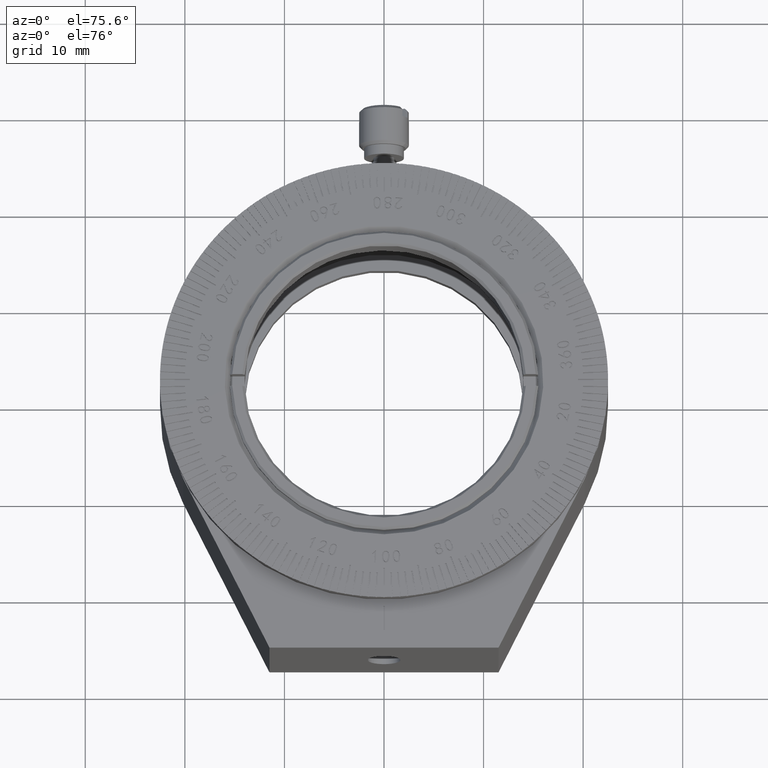
[diagram: clean part render]
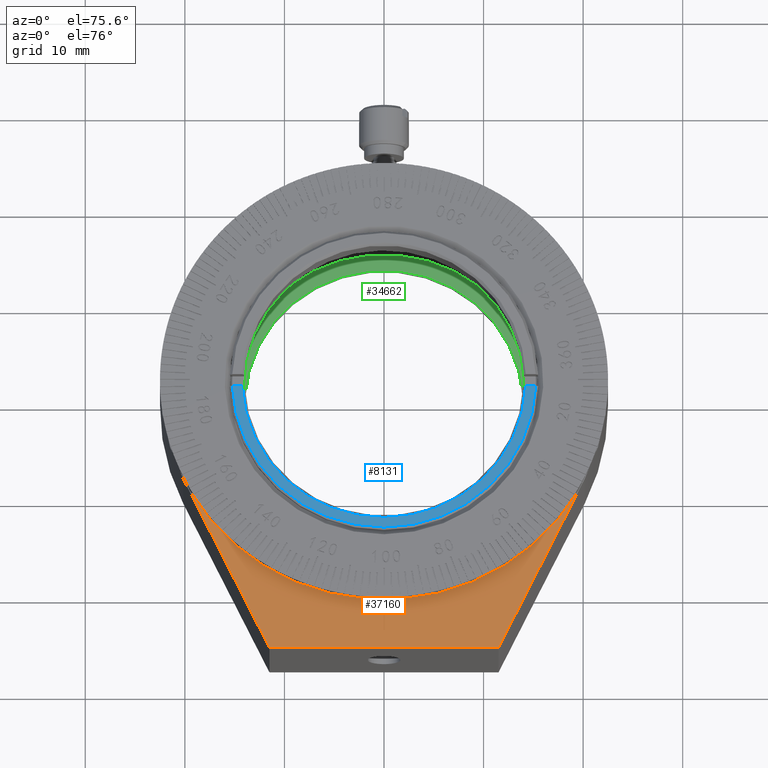
[diagram: same view with three faces highlighted in distinct colors, each labeled with its STEP entity id]
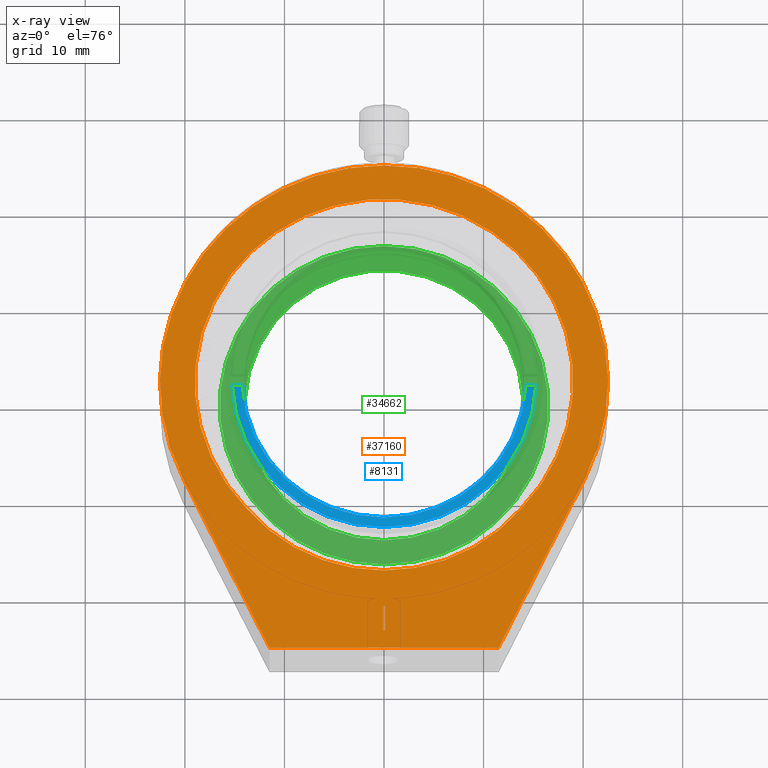
[diagram: x-ray of the same camera — body ghosted, the three highlighted faces saturated]
A machine part, auxiliary view with three faces highlighted in distinct colors.
The next image is the same camera in x-ray (body ghosted, the three faces saturated) — at least one of them is partly hidden behind the body in this view.
Their STEP definitions:

[orange] entity #37160 — the highlighted planar face has unit normal (0, 0, 1).
#762 = CARTESIAN_POINT ( 'NONE',  ( 0.000000000000000000, 10.00000000000000000, 25.69999999999999929 ) ) ;
#772 = EDGE_CURVE ( 'NONE', #30325, #32861, #28014, .T. ) ;
#779 = CARTESIAN_POINT ( 'NONE',  ( 0.000000000000000000, 10.00000000000000000, 27.50000000000000000 ) ) ;
#1203 = DIRECTION ( 'NONE',  ( 0.000000000000000000, 0.000000000000000000, 1.000000000000000000 ) ) ;
#1663 = DIRECTION ( 'NONE',  ( 1.000000000000000000, 0.000000000000000000, -0.000000000000000000 ) ) ;
#2346 = VERTEX_POINT ( 'NONE', #14215 ) ;
#3522 = DIRECTION ( 'NONE',  ( 0.000000000000000000, 1.000000000000000000, 0.000000000000000000 ) ) ;
#3915 = ORIENTED_EDGE ( 'NONE', *, *, #772, .T. ) ;
#6412 = LINE ( 'NONE', #779, #33964 ) ;
#6437 = DIRECTION ( 'NONE',  ( 0.000000000000000000, 0.000000000000000000, 1.000000000000000000 ) ) ;
#7767 = EDGE_CURVE ( 'NONE', #47676, #61572, #40872, .T. ) ;
#8728 = DIRECTION ( 'NONE',  ( 0.000000000000000000, -0.000000000000000000, 1.000000000000000000 ) ) ;
#8735 = CARTESIAN_POINT ( 'NONE',  ( 20.16791126059156980, 10.00000000000000000, 9.975237109207151676 ) ) ;
#8884 = EDGE_LOOP ( 'NONE', ( #31712, #43660 ) ) ;
#9024 = DIRECTION ( 'NONE',  ( -0.000000000000000000, 0.000000000000000000, -1.000000000000000000 ) ) ;
#9894 = DIRECTION ( 'NONE',  ( 0.4433438715203179559, 0.000000000000000000, -0.8963516115818478402 ) ) ;
#11913 = CARTESIAN_POINT ( 'NONE',  ( 11.50000000000000355, 10.00000000000000000, 27.50000000000000000 ) ) ;
#11928 = DIRECTION ( 'NONE',  ( 0.4433438715203182334, 0.000000000000000000, 0.8963516115818477292 ) ) ;
#13750 = LINE ( 'NONE', #19406, #25097 ) ;
#14064 = DIRECTION ( 'NONE',  ( 0.000000000000000000, -0.000000000000000000, 1.000000000000000000 ) ) ;
#14102 = FACE_BOUND ( 'NONE', #45536, .T. ) ;
#14215 = CARTESIAN_POINT ( 'NONE',  ( -20.16791126059156980, 10.00000000000000000, 9.975237109207158781 ) ) ;
#17436 = VECTOR ( 'NONE', #9894, 1000.000000000000227 ) ;
#17594 = EDGE_CURVE ( 'NONE', #61572, #47676, #25172, .T. ) ;
#17857 = ORIENTED_EDGE ( 'NONE', *, *, #46785, .T. ) ;
#18462 = CARTESIAN_POINT ( 'NONE',  ( 0.07500000000000284217, 10.00000000000000000, 0.000000000000000000 ) ) ;
#19244 = CARTESIAN_POINT ( 'NONE',  ( -13.77774977595721495, 10.00000000000000000, 13.08333333333332504 ) ) ;
#19406 = CARTESIAN_POINT ( 'NONE',  ( -0.07499999999999684697, 10.00000000000000000, 0.000000000000000000 ) ) ;
#23001 = ORIENTED_EDGE ( 'NONE', *, *, #58856, .T. ) ;
#23629 = EDGE_CURVE ( 'NONE', #45659, #38841, #6412, .T. ) ;
#23786 = VECTOR ( 'NONE', #14064, 1000.000000000000000 ) ;
#23972 = ORIENTED_EDGE ( 'NONE', *, *, #47364, .T. ) ;
#24178 = FACE_OUTER_BOUND ( 'NONE', #48142, .T. ) ;
#25097 = VECTOR ( 'NONE', #9024, 1000.000000000000000 ) ;
#25172 = CIRCLE ( 'NONE', #62423, 19.00000000000000000 ) ;
#25629 = LINE ( 'NONE', #44868, #47669 ) ;
#25654 = DIRECTION ( 'NONE',  ( 1.000000000000000000, 0.000000000000000000, -0.000000000000000000 ) ) ;
#27911 = ORIENTED_EDGE ( 'NONE', *, *, #46766, .T. ) ;
#28014 = LINE ( 'NONE', #762, #56707 ) ;
#28299 = DIRECTION ( 'NONE',  ( 0.000000000000000000, 1.000000000000000000, 0.000000000000000000 ) ) ;
#30325 = VERTEX_POINT ( 'NONE', #41619 ) ;
#30738 = CARTESIAN_POINT ( 'NONE',  ( 1.836970198721030181E-16, 10.00000000000000000, 1.500000000000000000 ) ) ;
#31612 = EDGE_CURVE ( 'NONE', #62283, #30325, #38348, .T. ) ;
#31712 = ORIENTED_EDGE ( 'NONE', *, *, #17594, .T. ) ;
#32376 = CARTESIAN_POINT ( 'NONE',  ( -11.49999999999999645, 10.00000000000000000, 27.50000000000000000 ) ) ;
#32861 = VERTEX_POINT ( 'NONE', #52317 ) ;
#33568 = AXIS2_PLACEMENT_3D ( 'NONE', #47683, #3522, #56518 ) ;
#33858 = LINE ( 'NONE', #53105, #17436 ) ;
#33964 = VECTOR ( 'NONE', #25654, 1000.000000000000000 ) ;
#34838 = DIRECTION ( 'NONE',  ( 0.000000000000000000, -1.000000000000000000, 0.000000000000000000 ) ) ;
#35287 = CARTESIAN_POINT ( 'NONE',  ( -20.16791126059156980, 10.00000000000000000, 9.975237109207160557 ) ) ;
#35345 = CARTESIAN_POINT ( 'NONE',  ( 13.77774977595722028, 10.00000000000000000, 13.08333333333331794 ) ) ;
#37160 = ADVANCED_FACE ( 'NONE', ( #24178, #48155, #14102 ), #43409, .T. ) ;
#37746 = CARTESIAN_POINT ( 'NONE',  ( 0.000000000000000000, 10.00000000000000000, 0.000000000000000000 ) ) ;
#38348 = LINE ( 'NONE', #18462, #23786 ) ;
#38841 = VERTEX_POINT ( 'NONE', #11913 ) ;
#39084 = ORIENTED_EDGE ( 'NONE', *, *, #31612, .T. ) ;
#40872 = CIRCLE ( 'NONE', #52887, 18.00000000000000355 ) ;
#41619 = CARTESIAN_POINT ( 'NONE',  ( 0.07500000000000306422, 10.00000000000000000, 25.69999999999999929 ) ) ;
#41784 = VECTOR ( 'NONE', #11928, 1000.000000000000000 ) ;
#42932 = DIRECTION ( 'NONE',  ( 0.000000000000000000, -1.000000000000000000, 0.000000000000000000 ) ) ;
#43409 = PLANE ( 'NONE',  #61146 ) ;
#43660 = ORIENTED_EDGE ( 'NONE', *, *, #7767, .T. ) ;
#44868 = CARTESIAN_POINT ( 'NONE',  ( 0.000000000000000000, 10.00000000000000000, 23.20000000000000284 ) ) ;
#44884 = ORIENTED_EDGE ( 'NONE', *, *, #51199, .T. ) ;
#45536 = EDGE_LOOP ( 'NONE', ( #39084, #3915, #23001, #23972 ) ) ;
#45659 = VERTEX_POINT ( 'NONE', #32376 ) ;
#46766 = EDGE_CURVE ( 'NONE', #38841, #49966, #33858, .T. ) ;
#46785 = EDGE_CURVE ( 'NONE', #49966, #2346, #49673, .T. ) ;
#47364 = EDGE_CURVE ( 'NONE', #61713, #62283, #25629, .T. ) ;
#47637 = CARTESIAN_POINT ( 'NONE',  ( -0.07499999999999708289, 10.00000000000000000, 23.20000000000000284 ) ) ;
#47669 = VECTOR ( 'NONE', #1663, 1000.000000000000000 ) ;
#47676 = VERTEX_POINT ( 'NONE', #35345 ) ;
#47683 = CARTESIAN_POINT ( 'NONE',  ( 0.000000000000000000, 10.00000000000000000, 0.000000000000000000 ) ) ;
#48142 = EDGE_LOOP ( 'NONE', ( #58909, #27911, #17857, #44884 ) ) ;
#48155 = FACE_BOUND ( 'NONE', #8884, .T. ) ;
#49673 = CIRCLE ( 'NONE', #33568, 22.49999999999999645 ) ;
#49966 = VERTEX_POINT ( 'NONE', #8735 ) ;
#50713 = LINE ( 'NONE', #35287, #41784 ) ;
#51199 = EDGE_CURVE ( 'NONE', #2346, #45659, #50713, .T. ) ;
#52283 = DIRECTION ( 'NONE',  ( -1.000000000000000000, -0.000000000000000000, 0.000000000000000000 ) ) ;
#52317 = CARTESIAN_POINT ( 'NONE',  ( -0.07499999999999684697, 10.00000000000000000, 25.69999999999999929 ) ) ;
#52887 = AXIS2_PLACEMENT_3D ( 'NONE', #30738, #34838, #6437 ) ;
#53105 = CARTESIAN_POINT ( 'NONE',  ( 11.50000000000000355, 10.00000000000000000, 27.49999999999999645 ) ) ;
#56518 = DIRECTION ( 'NONE',  ( 0.000000000000000000, 0.000000000000000000, -1.000000000000000000 ) ) ;
#56707 = VECTOR ( 'NONE', #52283, 1000.000000000000000 ) ;
#57248 = CARTESIAN_POINT ( 'NONE',  ( 0.07500000000000284217, 10.00000000000000000, 23.20000000000000284 ) ) ;
#58856 = EDGE_CURVE ( 'NONE', #32861, #61713, #13750, .T. ) ;
#58909 = ORIENTED_EDGE ( 'NONE', *, *, #23629, .T. ) ;
#61146 = AXIS2_PLACEMENT_3D ( 'NONE', #37746, #28299, #8728 ) ;
#61572 = VERTEX_POINT ( 'NONE', #19244 ) ;
#61713 = VERTEX_POINT ( 'NONE', #47637 ) ;
#61849 = CARTESIAN_POINT ( 'NONE',  ( 0.000000000000000000, 10.00000000000000000, 0.000000000000000000 ) ) ;
#62283 = VERTEX_POINT ( 'NONE', #57248 ) ;
#62423 = AXIS2_PLACEMENT_3D ( 'NONE', #61849, #42932, #1203 ) ;

[blue] entity #8131 — the highlighted planar face has unit normal (0, 0, 1).
#2531 = VECTOR ( 'NONE', #29740, 1000.000000000000000 ) ;
#3487 = ORIENTED_EDGE ( 'NONE', *, *, #41301, .T. ) ;
#5599 = EDGE_CURVE ( 'NONE', #41087, #17066, #48384, .T. ) ;
#6120 = VERTEX_POINT ( 'NONE', #60840 ) ;
#7444 = VERTEX_POINT ( 'NONE', #16309 ) ;
#7533 = EDGE_CURVE ( 'NONE', #7444, #17066, #31701, .T. ) ;
#8131 = ADVANCED_FACE ( 'NONE', ( #33540 ), #52779, .T. ) ;
#11412 = DIRECTION ( 'NONE',  ( 1.000000000000000000, 0.000000000000000000, -0.000000000000000000 ) ) ;
#14209 = DIRECTION ( 'NONE',  ( 1.000000000000000000, 0.000000000000000000, 0.000000000000000000 ) ) ;
#16309 = CARTESIAN_POINT ( 'NONE',  ( 15.23819214998945171, -0.5999999999999998668, 0.000000000000000000 ) ) ;
#17066 = VERTEX_POINT ( 'NONE', #60441 ) ;
#19344 = CARTESIAN_POINT ( 'NONE',  ( 0.000000000000000000, 0.000000000000000000, 0.000000000000000000 ) ) ;
#22587 = CARTESIAN_POINT ( 'NONE',  ( 0.000000000000000000, 0.000000000000000000, 0.000000000000000000 ) ) ;
#23012 = CARTESIAN_POINT ( 'NONE',  ( -14.23736281760073830, -0.5999999999999998668, 0.000000000000000000 ) ) ;
#23648 = DIRECTION ( 'NONE',  ( -0.000000000000000000, 0.000000000000000000, -1.000000000000000000 ) ) ;
#27363 = DIRECTION ( 'NONE',  ( -1.000000000000000000, -0.000000000000000000, 0.000000000000000000 ) ) ;
#27540 = VECTOR ( 'NONE', #27363, 1000.000000000000000 ) ;
#27668 = CARTESIAN_POINT ( 'NONE',  ( 0.000000000000000000, -0.5999999999999998668, 0.000000000000000000 ) ) ;
#28806 = CIRCLE ( 'NONE', #49941, 14.25000000000000178 ) ;
#29442 = CARTESIAN_POINT ( 'NONE',  ( 0.000000000000000000, -0.5999999999999998668, 0.000000000000000000 ) ) ;
#29740 = DIRECTION ( 'NONE',  ( -1.000000000000000000, -0.000000000000000000, 0.000000000000000000 ) ) ;
#31701 = CIRCLE ( 'NONE', #56863, 15.25000000000000533 ) ;
#33540 = FACE_OUTER_BOUND ( 'NONE', #43118, .T. ) ;
#36813 = LINE ( 'NONE', #27668, #27540 ) ;
#38914 = ORIENTED_EDGE ( 'NONE', *, *, #7533, .F. ) ;
#41087 = VERTEX_POINT ( 'NONE', #23012 ) ;
#41235 = ORIENTED_EDGE ( 'NONE', *, *, #5599, .T. ) ;
#41301 = EDGE_CURVE ( 'NONE', #7444, #6120, #36813, .T. ) ;
#41811 = DIRECTION ( 'NONE',  ( 0.000000000000000000, 0.000000000000000000, -1.000000000000000000 ) ) ;
#42140 = DIRECTION ( 'NONE',  ( -1.000000000000000000, 0.000000000000000000, 0.000000000000000000 ) ) ;
#43118 = EDGE_LOOP ( 'NONE', ( #3487, #53973, #41235, #38914 ) ) ;
#48384 = LINE ( 'NONE', #29442, #2531 ) ;
#49941 = AXIS2_PLACEMENT_3D ( 'NONE', #56769, #23648, #14209 ) ;
#52779 = PLANE ( 'NONE',  #53848 ) ;
#53848 = AXIS2_PLACEMENT_3D ( 'NONE', #19344, #54004, #11412 ) ;
#53973 = ORIENTED_EDGE ( 'NONE', *, *, #61725, .T. ) ;
#54004 = DIRECTION ( 'NONE',  ( 0.000000000000000000, 0.000000000000000000, 1.000000000000000000 ) ) ;
#56769 = CARTESIAN_POINT ( 'NONE',  ( 0.000000000000000000, 0.000000000000000000, 0.000000000000000000 ) ) ;
#56863 = AXIS2_PLACEMENT_3D ( 'NONE', #22587, #41811, #42140 ) ;
#60441 = CARTESIAN_POINT ( 'NONE',  ( -15.23819214998945171, -0.5999999999999998668, 0.000000000000000000 ) ) ;
#60840 = CARTESIAN_POINT ( 'NONE',  ( 14.23736281760074007, -0.5999999999999998668, 0.000000000000000000 ) ) ;
#61725 = EDGE_CURVE ( 'NONE', #6120, #41087, #28806, .T. ) ;

[green] entity #34662 — the highlighted planar face has unit normal (0, 0, -1).
#834 = AXIS2_PLACEMENT_3D ( 'NONE', #29474, #15276, #29180 ) ;
#3693 = DIRECTION ( 'NONE',  ( -0.000000000000000000, 1.000000000000000000, -0.000000000000000000 ) ) ;
#6408 = VERTEX_POINT ( 'NONE', #42283 ) ;
#10852 = CIRCLE ( 'NONE', #834, 16.50000000000000000 ) ;
#11121 = FACE_BOUND ( 'NONE', #25673, .T. ) ;
#13465 = EDGE_CURVE ( 'NONE', #60876, #60876, #10852, .T. ) ;
#15276 = DIRECTION ( 'NONE',  ( -0.000000000000000000, 1.000000000000000000, -0.000000000000000000 ) ) ;
#20571 = DIRECTION ( 'NONE',  ( 0.000000000000000000, -1.000000000000000000, 0.000000000000000000 ) ) ;
#20885 = DIRECTION ( 'NONE',  ( 0.000000000000000000, -0.000000000000000000, -1.000000000000000000 ) ) ;
#23610 = AXIS2_PLACEMENT_3D ( 'NONE', #51631, #3693, #37448 ) ;
#25673 = EDGE_LOOP ( 'NONE', ( #46148 ) ) ;
#26936 = AXIS2_PLACEMENT_3D ( 'NONE', #44548, #20571, #20885 ) ;
#29180 = DIRECTION ( 'NONE',  ( 0.000000000000000000, 0.000000000000000000, -1.000000000000000000 ) ) ;
#29474 = CARTESIAN_POINT ( 'NONE',  ( 0.000000000000000000, -9.250000000000000000, 0.000000000000000000 ) ) ;
#34662 = ADVANCED_FACE ( 'NONE', ( #39813, #11121 ), #59357, .F. ) ;
#37448 = DIRECTION ( 'NONE',  ( 0.000000000000000000, 0.000000000000000000, 1.000000000000000000 ) ) ;
#39813 = FACE_OUTER_BOUND ( 'NONE', #58616, .T. ) ;
#42283 = CARTESIAN_POINT ( 'NONE',  ( 0.000000000000000000, -9.250000000000000000, 14.00000000000000000 ) ) ;
#44548 = CARTESIAN_POINT ( 'NONE',  ( 0.000000000000000000, -9.250000000000000000, 0.000000000000000000 ) ) ;
#46148 = ORIENTED_EDGE ( 'NONE', *, *, #49952, .F. ) ;
#48559 = ORIENTED_EDGE ( 'NONE', *, *, #13465, .T. ) ;
#49952 = EDGE_CURVE ( 'NONE', #6408, #6408, #50794, .T. ) ;
#50794 = CIRCLE ( 'NONE', #23610, 14.00000000000000000 ) ;
#51631 = CARTESIAN_POINT ( 'NONE',  ( 0.000000000000000000, -9.250000000000000000, 0.000000000000000000 ) ) ;
#58616 = EDGE_LOOP ( 'NONE', ( #48559 ) ) ;
#59357 = PLANE ( 'NONE',  #26936 ) ;
#60876 = VERTEX_POINT ( 'NONE', #61207 ) ;
#61207 = CARTESIAN_POINT ( 'NONE',  ( 0.000000000000000000, -9.250000000000000000, -16.50000000000000000 ) ) ;